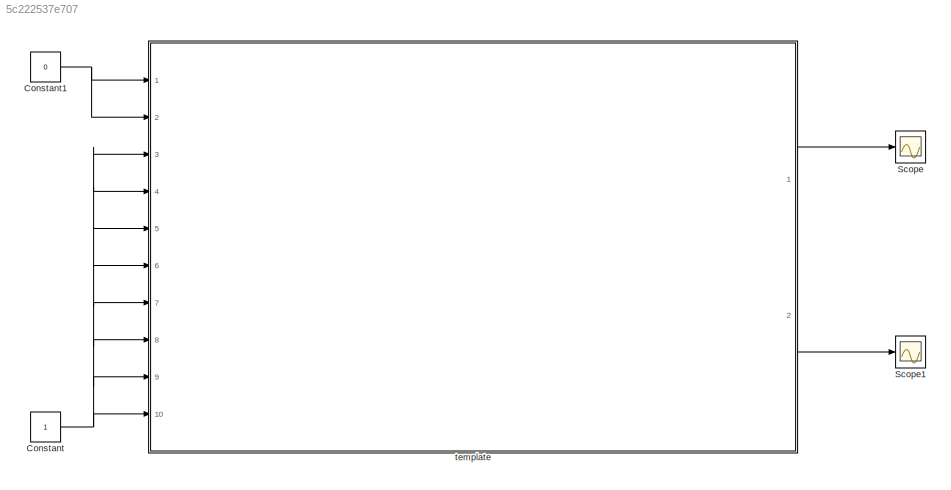
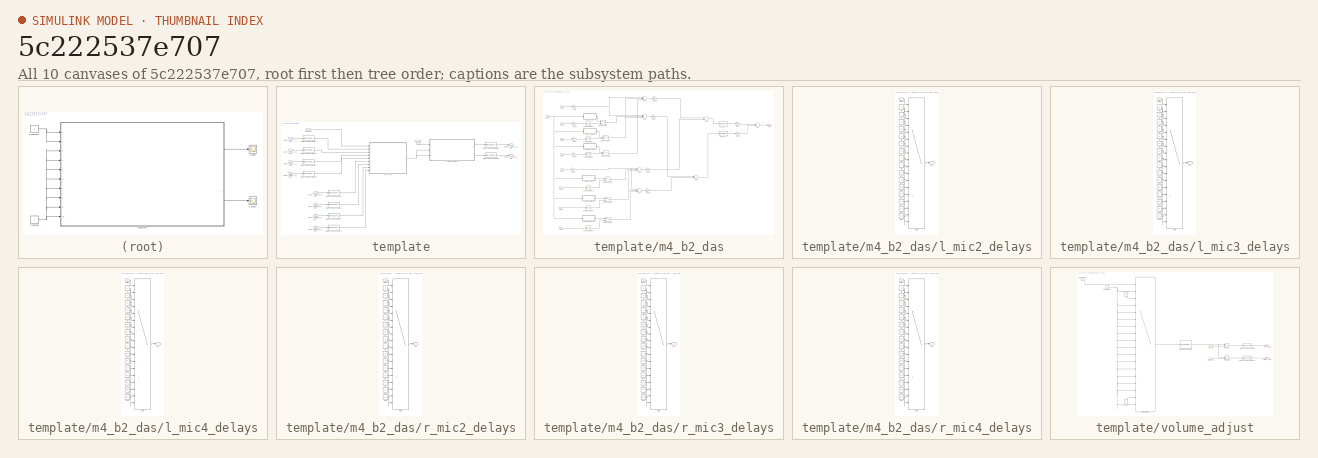
[diagram: thumbnail index - all 10 canvases of the model, root first then tree order]
MODEL slx_5c222537e707
KIND model
CONFIG AbsTol = auto
CONFIG FixedStep = auto
CONFIG MaxStep = auto
CONFIG MinStep = auto
CONFIG RelTol = 1e-3
CONFIG SampleTimeConstraint = Unconstrained
CONFIG Solver = FixedStepAuto
CONFIG SolverMode = SingleTasking
CONFIG SolverName = FixedStepAuto
CONFIG StartTime = 0.0
CONFIG StopTime = 10.0
BLOCK [Constant] Constant
  LockScale = on
  OutDataTypeStr = int32
  SampleTime = -1
BLOCK [Constant] Constant1
  LockScale = on
  OutDataTypeStr = uint32
  SampleTime = -1
  Value = 0
BLOCK [Scope] Scope
  Ports = [1]
  ScopeSpecificationString = Simulink.scopes.TimeScopeBlockCfg('CurrentConfiguration', extmgr.ConfigurationSet(extmgr.Configuration('Core','General UI',true),extmgr.Configuration('Core','Source UI',true),extmgr.Configuration('Sources','WiredSimulink',true,'DataLoggingLimitDataPoints',true,'DataLoggingSaveFormat','Array','DataLoggingDecimation','1','DataLoggingDecimateData',true),extmgr.Configuration('Visuals','Time Domain',tr...<+1477ch>
BLOCK [Scope] Scope1
  Ports = [1]
  ScopeSpecificationString = Simulink.scopes.TimeScopeBlockCfg('CurrentConfiguration', extmgr.ConfigurationSet(extmgr.Configuration('Core','General UI',true),extmgr.Configuration('Core','Source UI',true),extmgr.Configuration('Sources','WiredSimulink',true,'DataLoggingVariableName','ScopeData1','DataLoggingLimitDataPoints',true,'DataLoggingSaveFormat','Array','DataLoggingDecimation','1','DataLoggingDecimateData',true),extmgr.C...<+1508ch>
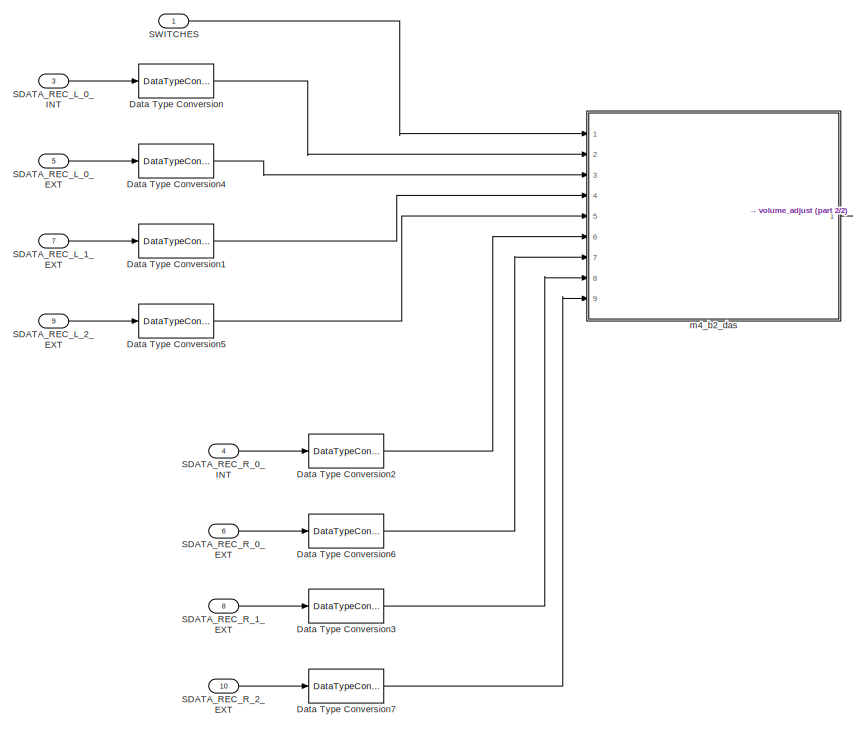
[diagram: template - part 1/2, left side, full height]
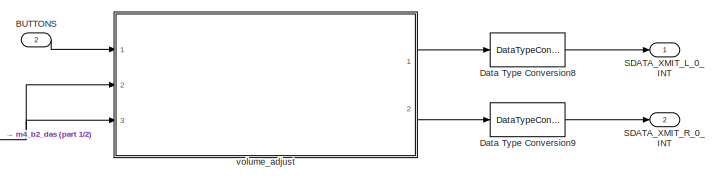
[diagram: template - part 2/2, top right region]
BLOCK [SubSystem] template
  Ports = [10, 2]
  RequestExecContextInheritance = off
  TreatAsAtomicUnit = on
  Variant = off
BLOCK [Inport] template/BUTTONS
  IconDisplay = Port number
  Port = 2
BLOCK [DataTypeConversion] template/Data Type Conversion
  ConvertRealWorld = Stored Integer (SI)
  OutDataTypeStr = fixdt(1,32,31)
  SaturateOnIntegerOverflow = off
BLOCK [DataTypeConversion] template/Data Type Conversion1
  ConvertRealWorld = Stored Integer (SI)
  OutDataTypeStr = fixdt(1,32,31)
  SaturateOnIntegerOverflow = off
BLOCK [DataTypeConversion] template/Data Type Conversion2
  ConvertRealWorld = Stored Integer (SI)
  OutDataTypeStr = fixdt(1,32,31)
  SaturateOnIntegerOverflow = off
BLOCK [DataTypeConversion] template/Data Type Conversion3
  ConvertRealWorld = Stored Integer (SI)
  OutDataTypeStr = fixdt(1,32,31)
  SaturateOnIntegerOverflow = off
BLOCK [DataTypeConversion] template/Data Type Conversion4
  ConvertRealWorld = Stored Integer (SI)
  OutDataTypeStr = fixdt(1,32,31)
  SaturateOnIntegerOverflow = off
BLOCK [DataTypeConversion] template/Data Type Conversion5
  ConvertRealWorld = Stored Integer (SI)
  OutDataTypeStr = fixdt(1,32,31)
  SaturateOnIntegerOverflow = off
BLOCK [DataTypeConversion] template/Data Type Conversion6
  ConvertRealWorld = Stored Integer (SI)
  OutDataTypeStr = fixdt(1,32,31)
  SaturateOnIntegerOverflow = off
BLOCK [DataTypeConversion] template/Data Type Conversion7
  ConvertRealWorld = Stored Integer (SI)
  OutDataTypeStr = fixdt(1,32,31)
  SaturateOnIntegerOverflow = off
BLOCK [DataTypeConversion] template/Data Type Conversion8
  ConvertRealWorld = Stored Integer (SI)
  OutDataTypeStr = int32
BLOCK [DataTypeConversion] template/Data Type Conversion9
  ConvertRealWorld = Stored Integer (SI)
  OutDataTypeStr = int32
BLOCK [Inport] template/SDATA_REC_L_0_EXT
  IconDisplay = Port number
  Port = 5
BLOCK [Inport] template/SDATA_REC_L_0_INT
  IconDisplay = Port number
  Port = 3
BLOCK [Inport] template/SDATA_REC_L_1_EXT
  IconDisplay = Port number
  Port = 7
BLOCK [Inport] template/SDATA_REC_L_2_EXT
  IconDisplay = Port number
  Port = 9
BLOCK [Inport] template/SDATA_REC_R_0_EXT
  IconDisplay = Port number
  Port = 6
BLOCK [Inport] template/SDATA_REC_R_0_INT
  IconDisplay = Port number
  Port = 4
BLOCK [Inport] template/SDATA_REC_R_1_EXT
  IconDisplay = Port number
  Port = 8
BLOCK [Inport] template/SDATA_REC_R_2_EXT
  IconDisplay = Port number
  Port = 10
BLOCK [Outport] template/SDATA_XMIT_L_0_INT
  IconDisplay = Port number
BLOCK [Outport] template/SDATA_XMIT_R_0_INT
  IconDisplay = Port number
  Port = 2
BLOCK [Inport] template/SWITCHES
  IconDisplay = Port number
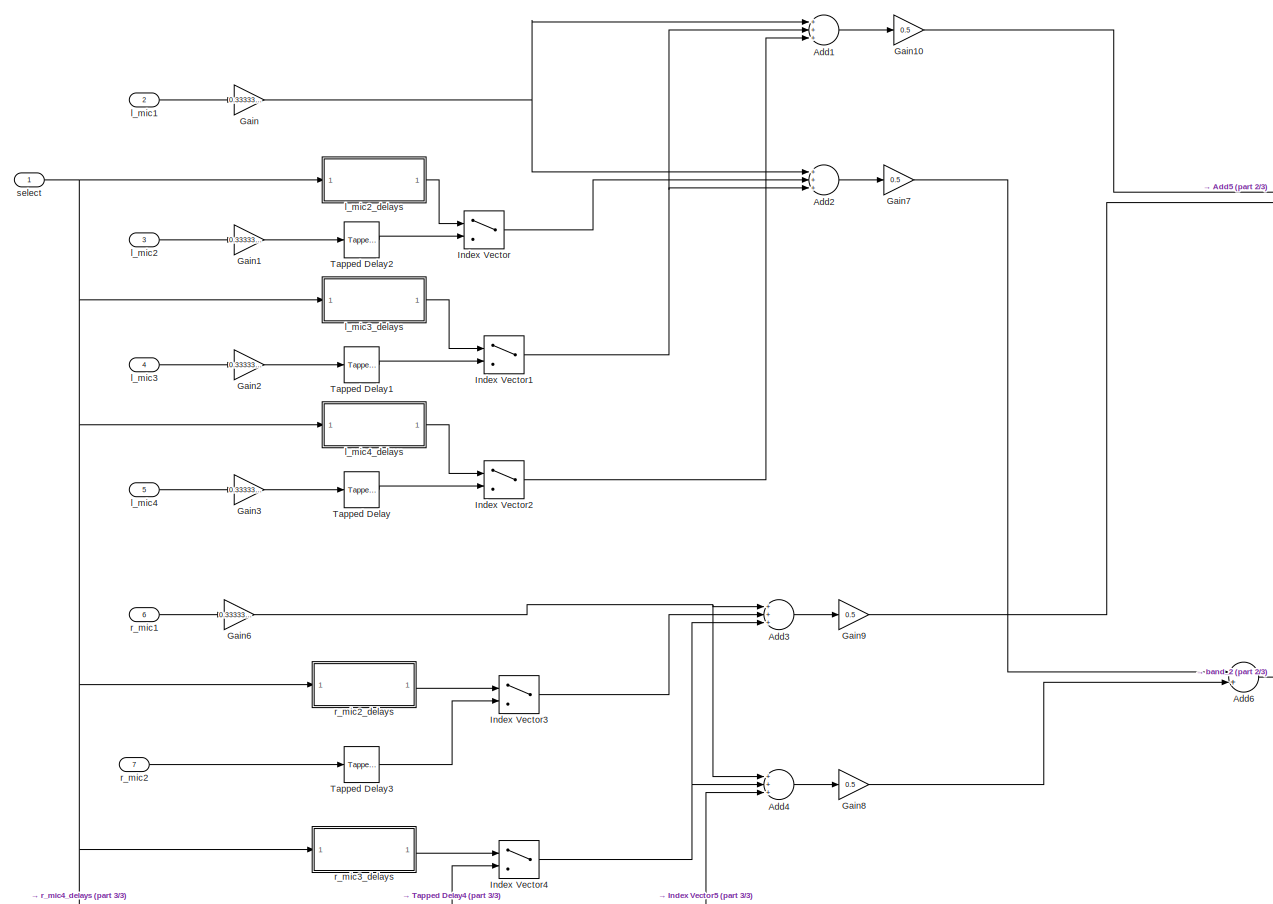
[diagram: template/m4_b2_das - part 1/3, center side, full height]
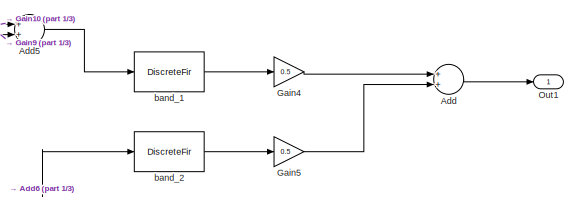
[diagram: template/m4_b2_das - part 2/3, top right region]
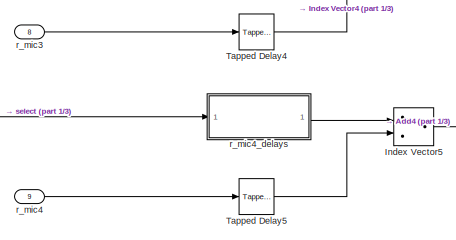
[diagram: template/m4_b2_das - part 3/3, bottom left region]
BLOCK [SubSystem] template/m4_b2_das
  Ports = [9, 1]
  RequestExecContextInheritance = off
  Variant = off
BLOCK [Sum] template/m4_b2_das/Add
  AccumDataTypeStr = Inherit: Same as first input
  InputSameDT = off
  OutDataTypeStr = Inherit: Inherit via back propagation
  Ports = [2, 1]
  RndMeth = Zero
  SaturateOnIntegerOverflow = off
BLOCK [Sum] template/m4_b2_das/Add1
  AccumDataTypeStr = Inherit: Same as first input
  InputSameDT = off
  Inputs = +++
  OutDataTypeStr = Inherit: Inherit via back propagation
  Ports = [3, 1]
  RndMeth = Zero
  SaturateOnIntegerOverflow = off
BLOCK [Sum] template/m4_b2_das/Add2
  AccumDataTypeStr = Inherit: Same as first input
  InputSameDT = off
  Inputs = +++
  OutDataTypeStr = Inherit: Inherit via back propagation
  Ports = [3, 1]
  RndMeth = Zero
  SaturateOnIntegerOverflow = off
BLOCK [Sum] template/m4_b2_das/Add3
  AccumDataTypeStr = Inherit: Same as first input
  InputSameDT = off
  Inputs = +++
  OutDataTypeStr = Inherit: Inherit via back propagation
  Ports = [3, 1]
  RndMeth = Zero
  SaturateOnIntegerOverflow = off
BLOCK [Sum] template/m4_b2_das/Add4
  AccumDataTypeStr = Inherit: Same as first input
  InputSameDT = off
  Inputs = +++
  OutDataTypeStr = Inherit: Inherit via back propagation
  Ports = [3, 1]
  RndMeth = Zero
  SaturateOnIntegerOverflow = off
BLOCK [Sum] template/m4_b2_das/Add5
  AccumDataTypeStr = Inherit: Same as first input
  InputSameDT = off
  OutDataTypeStr = Inherit: Inherit via back propagation
  Ports = [2, 1]
  RndMeth = Zero
  SaturateOnIntegerOverflow = off
BLOCK [Sum] template/m4_b2_das/Add6
  AccumDataTypeStr = Inherit: Same as first input
  InputSameDT = off
  OutDataTypeStr = Inherit: Inherit via back propagation
  Ports = [2, 1]
  RndMeth = Zero
  SaturateOnIntegerOverflow = off
BLOCK [Gain] template/m4_b2_das/Gain
  Gain = 0.333333333333333333333333
  OutDataTypeStr = Inherit: Inherit via back propagation
  ParamDataTypeStr = fixdt(1,32,31)
  RndMeth = Zero
  SaturateOnIntegerOverflow = off
BLOCK [Gain] template/m4_b2_das/Gain1
  Gain = 0.333333333333333333333333
  OutDataTypeStr = Inherit: Inherit via back propagation
  ParamDataTypeStr = fixdt(1,32,31)
  RndMeth = Zero
  SaturateOnIntegerOverflow = off
BLOCK [Gain] template/m4_b2_das/Gain10
  Gain = 0.5
  OutDataTypeStr = Inherit: Inherit via back propagation
  ParamDataTypeStr = fixdt(1,32,31)
  RndMeth = Zero
  SaturateOnIntegerOverflow = off
BLOCK [Gain] template/m4_b2_das/Gain2
  Gain = 0.333333333333333333333333
  OutDataTypeStr = Inherit: Inherit via back propagation
  ParamDataTypeStr = fixdt(1,32,31)
  RndMeth = Zero
  SaturateOnIntegerOverflow = off
BLOCK [Gain] template/m4_b2_das/Gain3
  Gain = 0.333333333333333333333333
  OutDataTypeStr = Inherit: Inherit via back propagation
  ParamDataTypeStr = fixdt(1,32,31)
  RndMeth = Zero
  SaturateOnIntegerOverflow = off
BLOCK [Gain] template/m4_b2_das/Gain4
  Gain = 0.5
  OutDataTypeStr = Inherit: Inherit via back propagation
  ParamDataTypeStr = fixdt(1,32,31)
  RndMeth = Zero
  SaturateOnIntegerOverflow = off
BLOCK [Gain] template/m4_b2_das/Gain5
  Gain = 0.5
  OutDataTypeStr = Inherit: Inherit via back propagation
  ParamDataTypeStr = fixdt(1,32,31)
  RndMeth = Zero
  SaturateOnIntegerOverflow = off
BLOCK [Gain] template/m4_b2_das/Gain6
  Gain = 0.333333333333333333333333
  OutDataTypeStr = Inherit: Inherit via back propagation
  ParamDataTypeStr = fixdt(1,32,31)
  RndMeth = Zero
  SaturateOnIntegerOverflow = off
BLOCK [Gain] template/m4_b2_das/Gain7
  Gain = 0.5
  OutDataTypeStr = Inherit: Inherit via back propagation
  ParamDataTypeStr = fixdt(1,32,31)
  RndMeth = Zero
  SaturateOnIntegerOverflow = off
BLOCK [Gain] template/m4_b2_das/Gain8
  Gain = 0.5
  OutDataTypeStr = Inherit: Inherit via back propagation
  ParamDataTypeStr = fixdt(1,32,31)
  RndMeth = Zero
  SaturateOnIntegerOverflow = off
BLOCK [Gain] template/m4_b2_das/Gain9
  Gain = 0.5
  OutDataTypeStr = Inherit: Inherit via back propagation
  ParamDataTypeStr = fixdt(1,32,31)
  RndMeth = Zero
  SaturateOnIntegerOverflow = off
BLOCK [MultiPortSwitch] template/m4_b2_das/Index Vector
  DataPortOrder = Zero-based contiguous
  InputSameDT = off
  Inputs = 1
  OutDataTypeStr = Inherit: Inherit via back propagation
  Ports = [2, 1]
  RndMeth = Zero
  SaturateOnIntegerOverflow = off
  zeroidx = on
BLOCK [MultiPortSwitch] template/m4_b2_das/Index Vector1
  DataPortOrder = Zero-based contiguous
  InputSameDT = off
  Inputs = 1
  OutDataTypeStr = Inherit: Inherit via back propagation
  Ports = [2, 1]
  RndMeth = Zero
  SaturateOnIntegerOverflow = off
  zeroidx = on
BLOCK [MultiPortSwitch] template/m4_b2_das/Index Vector2
  DataPortOrder = Zero-based contiguous
  InputSameDT = off
  Inputs = 1
  OutDataTypeStr = Inherit: Inherit via back propagation
  Ports = [2, 1]
  RndMeth = Zero
  SaturateOnIntegerOverflow = off
  zeroidx = on
BLOCK [MultiPortSwitch] template/m4_b2_das/Index Vector3
  DataPortOrder = Zero-based contiguous
  InputSameDT = off
  Inputs = 1
  OutDataTypeStr = Inherit: Inherit via back propagation
  Ports = [2, 1]
  RndMeth = Zero
  SaturateOnIntegerOverflow = off
  zeroidx = on
BLOCK [MultiPortSwitch] template/m4_b2_das/Index Vector4
  DataPortOrder = Zero-based contiguous
  InputSameDT = off
  Inputs = 1
  OutDataTypeStr = Inherit: Inherit via back propagation
  Ports = [2, 1]
  RndMeth = Zero
  SaturateOnIntegerOverflow = off
  zeroidx = on
BLOCK [MultiPortSwitch] template/m4_b2_das/Index Vector5
  DataPortOrder = Zero-based contiguous
  InputSameDT = off
  Inputs = 1
  OutDataTypeStr = Inherit: Inherit via back propagation
  Ports = [2, 1]
  RndMeth = Zero
  SaturateOnIntegerOverflow = off
  zeroidx = on
BLOCK [Outport] template/m4_b2_das/Out1
  IconDisplay = Port number
BLOCK [Reference] template/m4_b2_das/Tapped Delay  REF=simulink/Discrete/Tapped Delay
  Ports = [1, 1]
  SourceBlock = simulink/Discrete/Tapped Delay
  SourceType = Tapped Delay Line
BLOCK [Reference] template/m4_b2_das/Tapped Delay1  REF=simulink/Discrete/Tapped Delay
  Ports = [1, 1]
  SourceBlock = simulink/Discrete/Tapped Delay
  SourceType = Tapped Delay Line
BLOCK [Reference] template/m4_b2_das/Tapped Delay2  REF=simulink/Discrete/Tapped Delay
  Ports = [1, 1]
  SourceBlock = simulink/Discrete/Tapped Delay
  SourceType = Tapped Delay Line
BLOCK [Reference] template/m4_b2_das/Tapped Delay3  REF=simulink/Discrete/Tapped Delay
  Ports = [1, 1]
  SourceBlock = simulink/Discrete/Tapped Delay
  SourceType = Tapped Delay Line
BLOCK [Reference] template/m4_b2_das/Tapped Delay4  REF=simulink/Discrete/Tapped Delay
  Ports = [1, 1]
  SourceBlock = simulink/Discrete/Tapped Delay
  SourceType = Tapped Delay Line
BLOCK [Reference] template/m4_b2_das/Tapped Delay5  REF=simulink/Discrete/Tapped Delay
  Ports = [1, 1]
  SourceBlock = simulink/Discrete/Tapped Delay
  SourceType = Tapped Delay Line
BLOCK [DiscreteFir] template/m4_b2_das/band_1
  AccumDataTypeStr = fixdt(true,32,31)
  CoefDataTypeStr = fixdt(true,32,31)
  Coefficients = [-0.00053705791338513377 -0.00044855299737557808 -0.00036099922930643786 -0.00027182738607320795 -0.0001800106196580879 -8.7417645431150305e-05 4.5317422206240127e-19 7.1331751728587471e-05 0.00011027156665220004 9.5221825736704465e-05 0 -0.00020483530962554712 -0.00055007263840206664 -0.0010654350907672839 -0.0017768000544541641 -0.0027032258660805272 -0.0038539915115078267 -0.0052258738517944421...<+1638ch>
  FilterStructure = Direct form transposed
  InputPortMap = u0
  OutDataTypeStr = fixdt(true,32,31)
  OutputPortMap = o0
  Ports = [1, 1]
  ProductDataTypeStr = fixdt(true,32,31)
  RndMeth = Zero
  StateDataTypeStr = fixdt(true,32,31)
BLOCK [DiscreteFir] template/m4_b2_das/band_2
  AccumDataTypeStr = fixdt(true,32,31)
  CoefDataTypeStr = fixdt(true,32,31)
  Coefficients = [-0.00036313593382457956 -0.00057160558763808358 -0.00065269431705686481 -0.00059959800144019899 -0.00043096011414818828 -0.00020049863435509264 1.1229633857001479e-18 5.2388084292541928e-05 -0.00015767536744401418 -0.00069626860967264841 -0.0015353272375055386 -0.002523852547128952 -0.003394038353231411 -0.0038118140524449097 -0.0034668479487325946 -0.0021807585504879444 2.9770583721313723e-18 0....<+1674ch>
  FilterStructure = Direct form transposed
  InputPortMap = u0
  OutDataTypeStr = fixdt(true,32,31)
  OutputPortMap = o0
  Ports = [1, 1]
  ProductDataTypeStr = fixdt(true,32,31)
  RndMeth = Zero
  StateDataTypeStr = fixdt(true,32,31)
BLOCK [Inport] template/m4_b2_das/l_mic1
  IconDisplay = Port number
  Port = 2
BLOCK [Inport] template/m4_b2_das/l_mic2
  IconDisplay = Port number
  Port = 3
BLOCK [SubSystem] template/m4_b2_das/l_mic2_delays
  Ports = [1, 1]
  RequestExecContextInheritance = off
  Variant = off
BLOCK [Constant] template/m4_b2_das/l_mic2_delays/d1
  OutDataTypeStr = uint16
  SampleTime = -1
  Value = 0
BLOCK [Constant] template/m4_b2_das/l_mic2_delays/d10
  OutDataTypeStr = uint16
  SampleTime = -1
  Value = 8
BLOCK [Constant] template/m4_b2_das/l_mic2_delays/d11
  OutDataTypeStr = uint16
  SampleTime = -1
  Value = 9
BLOCK [Constant] template/m4_b2_das/l_mic2_delays/d12
  OutDataTypeStr = uint16
  SampleTime = -1
  Value = 10
BLOCK [Constant] template/m4_b2_das/l_mic2_delays/d13
  OutDataTypeStr = uint16
  SampleTime = -1
  Value = 10
BLOCK [Constant] template/m4_b2_das/l_mic2_delays/d14
  OutDataTypeStr = uint16
  SampleTime = -1
  Value = 11
BLOCK [Constant] template/m4_b2_das/l_mic2_delays/d15
  OutDataTypeStr = uint16
  SampleTime = -1
  Value = 12
BLOCK [Constant] template/m4_b2_das/l_mic2_delays/d16
  OutDataTypeStr = uint16
  SampleTime = -1
  Value = 12
BLOCK [Constant] template/m4_b2_das/l_mic2_delays/d2
  OutDataTypeStr = uint16
  SampleTime = -1
BLOCK [Constant] template/m4_b2_das/l_mic2_delays/d3
  OutDataTypeStr = uint16
  SampleTime = -1
  Value = 2
BLOCK [Constant] template/m4_b2_das/l_mic2_delays/d4
  OutDataTypeStr = uint16
  SampleTime = -1
  Value = 3
BLOCK [Constant] template/m4_b2_das/l_mic2_delays/d5
  OutDataTypeStr = uint16
  SampleTime = -1
  Value = 4
BLOCK [Constant] template/m4_b2_das/l_mic2_delays/d6
  OutDataTypeStr = uint16
  SampleTime = -1
  Value = 5
BLOCK [Constant] template/m4_b2_das/l_mic2_delays/d7
  OutDataTypeStr = uint16
  SampleTime = -1
  Value = 5
BLOCK [Constant] template/m4_b2_das/l_mic2_delays/d8
  OutDataTypeStr = uint16
  SampleTime = -1
  Value = 6
BLOCK [Constant] template/m4_b2_das/l_mic2_delays/d9
  OutDataTypeStr = uint16
  SampleTime = -1
  Value = 7
BLOCK [MultiPortSwitch] template/m4_b2_das/l_mic2_delays/mps
  DataPortForDefault = Additional data port
  DataPortOrder = Zero-based contiguous
  DiagnosticForDefault = None
  Inputs = 16
  OutDataTypeStr = Inherit: Inherit via back propagation
  Ports = [18, 1]
  RndMeth = Zero
  SaturateOnIntegerOverflow = off
BLOCK [Outport] template/m4_b2_das/l_mic2_delays/out
  IconDisplay = Port number
BLOCK [Inport] template/m4_b2_das/l_mic2_delays/select
  IconDisplay = Port number
BLOCK [Inport] template/m4_b2_das/l_mic3
  IconDisplay = Port number
  Port = 4
BLOCK [SubSystem] template/m4_b2_das/l_mic3_delays
  Ports = [1, 1]
  RequestExecContextInheritance = off
  Variant = off
BLOCK [Constant] template/m4_b2_das/l_mic3_delays/d1
  OutDataTypeStr = uint16
  SampleTime = -1
  Value = 0
BLOCK [Constant] template/m4_b2_das/l_mic3_delays/d10
  OutDataTypeStr = uint16
  SampleTime = -1
  Value = 17
BLOCK [Constant] template/m4_b2_das/l_mic3_delays/d11
  OutDataTypeStr = uint16
  SampleTime = -1
  Value = 18
BLOCK [Constant] template/m4_b2_das/l_mic3_delays/d12
  OutDataTypeStr = uint16
  SampleTime = -1
  Value = 20
BLOCK [Constant] template/m4_b2_das/l_mic3_delays/d13
  OutDataTypeStr = uint16
  SampleTime = -1
  Value = 21
BLOCK [Constant] template/m4_b2_das/l_mic3_delays/d14
  OutDataTypeStr = uint16
  SampleTime = -1
  Value = 22
BLOCK [Constant] template/m4_b2_das/l_mic3_delays/d15
  OutDataTypeStr = uint16
  SampleTime = -1
  Value = 24
BLOCK [Constant] template/m4_b2_das/l_mic3_delays/d16
  OutDataTypeStr = uint16
  SampleTime = -1
  Value = 25
BLOCK [Constant] template/m4_b2_das/l_mic3_delays/d2
  OutDataTypeStr = uint16
  SampleTime = -1
  Value = 2
BLOCK [Constant] template/m4_b2_das/l_mic3_delays/d3
  OutDataTypeStr = uint16
  SampleTime = -1
  Value = 4
BLOCK [Constant] template/m4_b2_das/l_mic3_delays/d4
  OutDataTypeStr = uint16
  SampleTime = -1
  Value = 6
BLOCK [Constant] template/m4_b2_das/l_mic3_delays/d5
  OutDataTypeStr = uint16
  SampleTime = -1
  Value = 8
BLOCK [Constant] template/m4_b2_das/l_mic3_delays/d6
  OutDataTypeStr = uint16
  SampleTime = -1
  Value = 10
BLOCK [Constant] template/m4_b2_das/l_mic3_delays/d7
  OutDataTypeStr = uint16
  SampleTime = -1
  Value = 11
BLOCK [Constant] template/m4_b2_das/l_mic3_delays/d8
  OutDataTypeStr = uint16
  SampleTime = -1
  Value = 13
BLOCK [Constant] template/m4_b2_das/l_mic3_delays/d9
  OutDataTypeStr = uint16
  SampleTime = -1
  Value = 15
BLOCK [MultiPortSwitch] template/m4_b2_das/l_mic3_delays/mps
  DataPortForDefault = Additional data port
  DataPortOrder = Zero-based contiguous
  DiagnosticForDefault = None
  Inputs = 16
  OutDataTypeStr = Inherit: Inherit via back propagation
  Ports = [18, 1]
  RndMeth = Zero
  SaturateOnIntegerOverflow = off
BLOCK [Outport] template/m4_b2_das/l_mic3_delays/out
  IconDisplay = Port number
BLOCK [Inport] template/m4_b2_das/l_mic3_delays/select
  IconDisplay = Port number
BLOCK [Inport] template/m4_b2_das/l_mic4
  IconDisplay = Port number
  Port = 5
BLOCK [SubSystem] template/m4_b2_das/l_mic4_delays
  Ports = [1, 1]
  RequestExecContextInheritance = off
  Variant = off
BLOCK [Constant] template/m4_b2_das/l_mic4_delays/d1
  OutDataTypeStr = uint16
  SampleTime = -1
  Value = 0
BLOCK [Constant] template/m4_b2_das/l_mic4_delays/d10
  OutDataTypeStr = uint16
  SampleTime = -1
  Value = 34
BLOCK [Constant] template/m4_b2_das/l_mic4_delays/d11
  OutDataTypeStr = uint16
  SampleTime = -1
  Value = 37
BLOCK [Constant] template/m4_b2_das/l_mic4_delays/d12
  OutDataTypeStr = uint16
  SampleTime = -1
  Value = 40
BLOCK [Constant] template/m4_b2_das/l_mic4_delays/d13
  OutDataTypeStr = uint16
  SampleTime = -1
  Value = 43
BLOCK [Constant] template/m4_b2_das/l_mic4_delays/d14
  OutDataTypeStr = uint16
  SampleTime = -1
  Value = 45
BLOCK [Constant] template/m4_b2_das/l_mic4_delays/d15
  OutDataTypeStr = uint16
  SampleTime = -1
  Value = 48
BLOCK [Constant] template/m4_b2_das/l_mic4_delays/d16
  OutDataTypeStr = uint16
  SampleTime = -1
  Value = 50
BLOCK [Constant] template/m4_b2_das/l_mic4_delays/d2
  OutDataTypeStr = uint16
  SampleTime = -1
  Value = 4
BLOCK [Constant] template/m4_b2_das/l_mic4_delays/d3
  OutDataTypeStr = uint16
  SampleTime = -1
  Value = 8
BLOCK [Constant] template/m4_b2_das/l_mic4_delays/d4
  OutDataTypeStr = uint16
  SampleTime = -1
  Value = 12
BLOCK [Constant] template/m4_b2_das/l_mic4_delays/d5
  OutDataTypeStr = uint16
  SampleTime = -1
  Value = 16
BLOCK [Constant] template/m4_b2_das/l_mic4_delays/d6
  OutDataTypeStr = uint16
  SampleTime = -1
  Value = 20
BLOCK [Constant] template/m4_b2_das/l_mic4_delays/d7
  OutDataTypeStr = uint16
  SampleTime = -1
  Value = 23
BLOCK [Constant] template/m4_b2_das/l_mic4_delays/d8
  OutDataTypeStr = uint16
  SampleTime = -1
  Value = 27
BLOCK [Constant] template/m4_b2_das/l_mic4_delays/d9
  OutDataTypeStr = uint16
  SampleTime = -1
  Value = 31
BLOCK [MultiPortSwitch] template/m4_b2_das/l_mic4_delays/mps
  DataPortForDefault = Additional data port
  DataPortOrder = Zero-based contiguous
  DiagnosticForDefault = None
  Inputs = 16
  OutDataTypeStr = Inherit: Inherit via back propagation
  Ports = [18, 1]
  RndMeth = Zero
  SaturateOnIntegerOverflow = off
BLOCK [Outport] template/m4_b2_das/l_mic4_delays/out
  IconDisplay = Port number
BLOCK [Inport] template/m4_b2_das/l_mic4_delays/select
  IconDisplay = Port number
BLOCK [Inport] template/m4_b2_das/r_mic1
  IconDisplay = Port number
  Port = 6
BLOCK [Inport] template/m4_b2_das/r_mic2
  IconDisplay = Port number
  Port = 7
BLOCK [SubSystem] template/m4_b2_das/r_mic2_delays
  Ports = [1, 1]
  RequestExecContextInheritance = off
  Variant = off
BLOCK [Constant] template/m4_b2_das/r_mic2_delays/d1
  OutDataTypeStr = uint16
  SampleTime = -1
  Value = 0
BLOCK [Constant] template/m4_b2_das/r_mic2_delays/d10
  OutDataTypeStr = uint16
  SampleTime = -1
  Value = 8
BLOCK [Constant] template/m4_b2_das/r_mic2_delays/d11
  OutDataTypeStr = uint16
  SampleTime = -1
  Value = 9
BLOCK [Constant] template/m4_b2_das/r_mic2_delays/d12
  OutDataTypeStr = uint16
  SampleTime = -1
  Value = 10
BLOCK [Constant] template/m4_b2_das/r_mic2_delays/d13
  OutDataTypeStr = uint16
  SampleTime = -1
  Value = 10
BLOCK [Constant] template/m4_b2_das/r_mic2_delays/d14
  OutDataTypeStr = uint16
  SampleTime = -1
  Value = 11
BLOCK [Constant] template/m4_b2_das/r_mic2_delays/d15
  OutDataTypeStr = uint16
  SampleTime = -1
  Value = 12
BLOCK [Constant] template/m4_b2_das/r_mic2_delays/d16
  OutDataTypeStr = uint16
  SampleTime = -1
  Value = 12
BLOCK [Constant] template/m4_b2_das/r_mic2_delays/d2
  OutDataTypeStr = uint16
  SampleTime = -1
BLOCK [Constant] template/m4_b2_das/r_mic2_delays/d3
  OutDataTypeStr = uint16
  SampleTime = -1
  Value = 2
BLOCK [Constant] template/m4_b2_das/r_mic2_delays/d4
  OutDataTypeStr = uint16
  SampleTime = -1
  Value = 3
BLOCK [Constant] template/m4_b2_das/r_mic2_delays/d5
  OutDataTypeStr = uint16
  SampleTime = -1
  Value = 4
BLOCK [Constant] template/m4_b2_das/r_mic2_delays/d6
  OutDataTypeStr = uint16
  SampleTime = -1
  Value = 5
BLOCK [Constant] template/m4_b2_das/r_mic2_delays/d7
  OutDataTypeStr = uint16
  SampleTime = -1
  Value = 5
BLOCK [Constant] template/m4_b2_das/r_mic2_delays/d8
  OutDataTypeStr = uint16
  SampleTime = -1
  Value = 6
BLOCK [Constant] template/m4_b2_das/r_mic2_delays/d9
  OutDataTypeStr = uint16
  SampleTime = -1
  Value = 7
BLOCK [MultiPortSwitch] template/m4_b2_das/r_mic2_delays/mps
  DataPortForDefault = Additional data port
  DataPortOrder = Zero-based contiguous
  DiagnosticForDefault = None
  Inputs = 16
  OutDataTypeStr = Inherit: Inherit via back propagation
  Ports = [18, 1]
  RndMeth = Zero
  SaturateOnIntegerOverflow = off
BLOCK [Outport] template/m4_b2_das/r_mic2_delays/out
  IconDisplay = Port number
BLOCK [Inport] template/m4_b2_das/r_mic2_delays/select
  IconDisplay = Port number
BLOCK [Inport] template/m4_b2_das/r_mic3
  IconDisplay = Port number
  Port = 8
BLOCK [SubSystem] template/m4_b2_das/r_mic3_delays
  Ports = [1, 1]
  RequestExecContextInheritance = off
  Variant = off
BLOCK [Constant] template/m4_b2_das/r_mic3_delays/d1
  OutDataTypeStr = uint16
  SampleTime = -1
  Value = 0
BLOCK [Constant] template/m4_b2_das/r_mic3_delays/d10
  OutDataTypeStr = uint16
  SampleTime = -1
  Value = 17
BLOCK [Constant] template/m4_b2_das/r_mic3_delays/d11
  OutDataTypeStr = uint16
  SampleTime = -1
  Value = 18
BLOCK [Constant] template/m4_b2_das/r_mic3_delays/d12
  OutDataTypeStr = uint16
  SampleTime = -1
  Value = 20
BLOCK [Constant] template/m4_b2_das/r_mic3_delays/d13
  OutDataTypeStr = uint16
  SampleTime = -1
  Value = 21
BLOCK [Constant] template/m4_b2_das/r_mic3_delays/d14
  OutDataTypeStr = uint16
  SampleTime = -1
  Value = 22
BLOCK [Constant] template/m4_b2_das/r_mic3_delays/d15
  OutDataTypeStr = uint16
  SampleTime = -1
  Value = 24
BLOCK [Constant] template/m4_b2_das/r_mic3_delays/d16
  OutDataTypeStr = uint16
  SampleTime = -1
  Value = 25
BLOCK [Constant] template/m4_b2_das/r_mic3_delays/d2
  OutDataTypeStr = uint16
  SampleTime = -1
  Value = 2
BLOCK [Constant] template/m4_b2_das/r_mic3_delays/d3
  OutDataTypeStr = uint16
  SampleTime = -1
  Value = 4
BLOCK [Constant] template/m4_b2_das/r_mic3_delays/d4
  OutDataTypeStr = uint16
  SampleTime = -1
  Value = 6
BLOCK [Constant] template/m4_b2_das/r_mic3_delays/d5
  OutDataTypeStr = uint16
  SampleTime = -1
  Value = 8
BLOCK [Constant] template/m4_b2_das/r_mic3_delays/d6
  OutDataTypeStr = uint16
  SampleTime = -1
  Value = 10
BLOCK [Constant] template/m4_b2_das/r_mic3_delays/d7
  OutDataTypeStr = uint16
  SampleTime = -1
  Value = 11
BLOCK [Constant] template/m4_b2_das/r_mic3_delays/d8
  OutDataTypeStr = uint16
  SampleTime = -1
  Value = 13
BLOCK [Constant] template/m4_b2_das/r_mic3_delays/d9
  OutDataTypeStr = uint16
  SampleTime = -1
  Value = 15
BLOCK [MultiPortSwitch] template/m4_b2_das/r_mic3_delays/mps
  DataPortForDefault = Additional data port
  DataPortOrder = Zero-based contiguous
  DiagnosticForDefault = None
  Inputs = 16
  OutDataTypeStr = Inherit: Inherit via back propagation
  Ports = [18, 1]
  RndMeth = Zero
  SaturateOnIntegerOverflow = off
BLOCK [Outport] template/m4_b2_das/r_mic3_delays/out
  IconDisplay = Port number
BLOCK [Inport] template/m4_b2_das/r_mic3_delays/select
  IconDisplay = Port number
BLOCK [Inport] template/m4_b2_das/r_mic4
  IconDisplay = Port number
  Port = 9
BLOCK [SubSystem] template/m4_b2_das/r_mic4_delays
  Ports = [1, 1]
  RequestExecContextInheritance = off
  Variant = off
BLOCK [Constant] template/m4_b2_das/r_mic4_delays/d1
  OutDataTypeStr = uint16
  SampleTime = -1
  Value = 0
BLOCK [Constant] template/m4_b2_das/r_mic4_delays/d10
  OutDataTypeStr = uint16
  SampleTime = -1
  Value = 34
BLOCK [Constant] template/m4_b2_das/r_mic4_delays/d11
  OutDataTypeStr = uint16
  SampleTime = -1
  Value = 37
BLOCK [Constant] template/m4_b2_das/r_mic4_delays/d12
  OutDataTypeStr = uint16
  SampleTime = -1
  Value = 40
BLOCK [Constant] template/m4_b2_das/r_mic4_delays/d13
  OutDataTypeStr = uint16
  SampleTime = -1
  Value = 43
BLOCK [Constant] template/m4_b2_das/r_mic4_delays/d14
  OutDataTypeStr = uint16
  SampleTime = -1
  Value = 45
BLOCK [Constant] template/m4_b2_das/r_mic4_delays/d15
  OutDataTypeStr = uint16
  SampleTime = -1
  Value = 48
BLOCK [Constant] template/m4_b2_das/r_mic4_delays/d16
  OutDataTypeStr = uint16
  SampleTime = -1
  Value = 50
BLOCK [Constant] template/m4_b2_das/r_mic4_delays/d2
  OutDataTypeStr = uint16
  SampleTime = -1
  Value = 4
BLOCK [Constant] template/m4_b2_das/r_mic4_delays/d3
  OutDataTypeStr = uint16
  SampleTime = -1
  Value = 8
BLOCK [Constant] template/m4_b2_das/r_mic4_delays/d4
  OutDataTypeStr = uint16
  SampleTime = -1
  Value = 12
BLOCK [Constant] template/m4_b2_das/r_mic4_delays/d5
  OutDataTypeStr = uint16
  SampleTime = -1
  Value = 16
BLOCK [Constant] template/m4_b2_das/r_mic4_delays/d6
  OutDataTypeStr = uint16
  SampleTime = -1
  Value = 20
BLOCK [Constant] template/m4_b2_das/r_mic4_delays/d7
  OutDataTypeStr = uint16
  SampleTime = -1
  Value = 23
BLOCK [Constant] template/m4_b2_das/r_mic4_delays/d8
  OutDataTypeStr = uint16
  SampleTime = -1
  Value = 27
BLOCK [Constant] template/m4_b2_das/r_mic4_delays/d9
  OutDataTypeStr = uint16
  SampleTime = -1
  Value = 31
BLOCK [MultiPortSwitch] template/m4_b2_das/r_mic4_delays/mps
  DataPortForDefault = Additional data port
  DataPortOrder = Zero-based contiguous
  DiagnosticForDefault = None
  Inputs = 16
  OutDataTypeStr = Inherit: Inherit via back propagation
  Ports = [18, 1]
  RndMeth = Zero
  SaturateOnIntegerOverflow = off
BLOCK [Outport] template/m4_b2_das/r_mic4_delays/out
  IconDisplay = Port number
BLOCK [Inport] template/m4_b2_das/r_mic4_delays/select
  IconDisplay = Port number
BLOCK [Inport] template/m4_b2_das/select
  IconDisplay = Port number
BLOCK [SubSystem] template/volume_adjust
  Ports = [3, 2]
  RequestExecContextInheritance = off
  Variant = off
BLOCK [Inport] template/volume_adjust/BUTTONS
  IconDisplay = Port number
BLOCK [Constant] template/volume_adjust/Constant
  OutDataTypeStr = fixdt(1,64,31)
  SampleTime = -1
BLOCK [Constant] template/volume_adjust/Constant1
  OutDataTypeStr = fixdt(1,64,31)
  SampleTime = -1
  Value = -1
BLOCK [Constant] template/volume_adjust/Constant2
  OutDataTypeStr = fixdt(1,64,31)
  SampleTime = -1
  Value = 0
BLOCK [DataTypeConversion] template/volume_adjust/Data Type Conversion
  OutDataTypeStr = fixdt(1,32,31)
  SaturateOnIntegerOverflow = off
BLOCK [DataTypeConversion] template/volume_adjust/Data Type Conversion1
  OutDataTypeStr = fixdt(1,32,31)
  SaturateOnIntegerOverflow = off
BLOCK [DiscreteIntegrator] template/volume_adjust/Discrete-Time Integrator
  ICPrevOutput = DiscIntNeverNeededParam
  ICPrevScaledInput = DiscIntNeverNeededParam
  InitialCondition = 1
  LimitOutput = on
  LowerSaturationLimit = 0
  OutDataTypeStr = fixdt(1,64,31)
  Ports = [1, 1]
  RndMeth = Zero
  SaturateOnIntegerOverflow = on
  UpperSaturationLimit = 10000
  gainval = 0.00005
BLOCK [Inport] template/volume_adjust/LEFT_IN
  IconDisplay = Port number
  Port = 2
BLOCK [Outport] template/volume_adjust/LEFT_OUT
  IconDisplay = Port number
BLOCK [MultiPortSwitch] template/volume_adjust/Multiport Switch
  DataPortForDefault = Additional data port
  DataPortIndices = {16,2}
  DiagnosticForDefault = None
  InputSameDT = off
  Inputs = 16
  OutDataTypeStr = Inherit: Inherit via back propagation
  Ports = [18, 1]
  RndMeth = Zero
  SaturateOnIntegerOverflow = off
BLOCK [Product] template/volume_adjust/Product
  InputSameDT = off
  OutDataTypeStr = Inherit: Inherit via back propagation
  Ports = [2, 1]
  SaturateOnIntegerOverflow = off
BLOCK [Product] template/volume_adjust/Product1
  InputSameDT = off
  OutDataTypeStr = Inherit: Inherit via back propagation
  Ports = [2, 1]
  SaturateOnIntegerOverflow = off
BLOCK [Inport] template/volume_adjust/RIGHT_IN
  IconDisplay = Port number
  Port = 3
BLOCK [Outport] template/volume_adjust/RIGHT_OUT
  IconDisplay = Port number
  Port = 2
NET Constant1:1 -> template:1, template:2
NET Constant:1 -> template:10, template:3, template:4, template:5, template:6, template:7, template:8, template:9
LINE template/BUTTONS:1 -> template/volume_adjust:1
LINE template/Data Type Conversion1:1 -> template/m4_b2_das:4
LINE template/Data Type Conversion2:1 -> template/m4_b2_das:6
LINE template/Data Type Conversion3:1 -> template/m4_b2_das:8
LINE template/Data Type Conversion4:1 -> template/m4_b2_das:3
LINE template/Data Type Conversion5:1 -> template/m4_b2_das:5
LINE template/Data Type Conversion6:1 -> template/m4_b2_das:7
LINE template/Data Type Conversion7:1 -> template/m4_b2_das:9
LINE template/Data Type Conversion8:1 -> template/SDATA_XMIT_L_0_INT:1
LINE template/Data Type Conversion9:1 -> template/SDATA_XMIT_R_0_INT:1
LINE template/Data Type Conversion:1 -> template/m4_b2_das:2
LINE template/SDATA_REC_L_0_EXT:1 -> template/Data Type Conversion4:1
LINE template/SDATA_REC_L_0_INT:1 -> template/Data Type Conversion:1
LINE template/SDATA_REC_L_1_EXT:1 -> template/Data Type Conversion1:1
LINE template/SDATA_REC_L_2_EXT:1 -> template/Data Type Conversion5:1
LINE template/SDATA_REC_R_0_EXT:1 -> template/Data Type Conversion6:1
LINE template/SDATA_REC_R_0_INT:1 -> template/Data Type Conversion2:1
LINE template/SDATA_REC_R_1_EXT:1 -> template/Data Type Conversion3:1
LINE template/SDATA_REC_R_2_EXT:1 -> template/Data Type Conversion7:1
LINE template/SWITCHES:1 -> template/m4_b2_das:1
LINE template/m4_b2_das/Add1:1 -> template/m4_b2_das/Gain10:1
LINE template/m4_b2_das/Add2:1 -> template/m4_b2_das/Gain7:1
LINE template/m4_b2_das/Add3:1 -> template/m4_b2_das/Gain9:1
LINE template/m4_b2_das/Add4:1 -> template/m4_b2_das/Gain8:1
LINE template/m4_b2_das/Add5:1 -> template/m4_b2_das/band_1:1
LINE template/m4_b2_das/Add6:1 -> template/m4_b2_das/band_2:1
LINE template/m4_b2_das/Add:1 -> template/m4_b2_das/Out1:1
LINE template/m4_b2_das/Gain10:1 -> template/m4_b2_das/Add5:1
LINE template/m4_b2_das/Gain1:1 -> template/m4_b2_das/Tapped Delay2:1
LINE template/m4_b2_das/Gain2:1 -> template/m4_b2_das/Tapped Delay1:1
LINE template/m4_b2_das/Gain3:1 -> template/m4_b2_das/Tapped Delay:1
LINE template/m4_b2_das/Gain4:1 -> template/m4_b2_das/Add:1
LINE template/m4_b2_das/Gain5:1 -> template/m4_b2_das/Add:2
NET template/m4_b2_das/Gain6:1 -> template/m4_b2_das/Add3:1, template/m4_b2_das/Add4:1
LINE template/m4_b2_das/Gain7:1 -> template/m4_b2_das/Add6:1
LINE template/m4_b2_das/Gain8:1 -> template/m4_b2_das/Add6:2
LINE template/m4_b2_das/Gain9:1 -> template/m4_b2_das/Add5:2
NET template/m4_b2_das/Gain:1 -> template/m4_b2_das/Add1:1, template/m4_b2_das/Add2:1
NET template/m4_b2_das/Index Vector1:1 -> template/m4_b2_das/Add1:2, template/m4_b2_das/Add2:3
LINE template/m4_b2_das/Index Vector2:1 -> template/m4_b2_das/Add1:3
LINE template/m4_b2_das/Index Vector3:1 -> template/m4_b2_das/Add3:2
NET template/m4_b2_das/Index Vector4:1 -> template/m4_b2_das/Add3:3, template/m4_b2_das/Add4:2
LINE template/m4_b2_das/Index Vector5:1 -> template/m4_b2_das/Add4:3
LINE template/m4_b2_das/Index Vector:1 -> template/m4_b2_das/Add2:2
LINE template/m4_b2_das/Tapped Delay1:1 -> template/m4_b2_das/Index Vector1:2
LINE template/m4_b2_das/Tapped Delay2:1 -> template/m4_b2_das/Index Vector:2
LINE template/m4_b2_das/Tapped Delay3:1 -> template/m4_b2_das/Index Vector3:2
LINE template/m4_b2_das/Tapped Delay4:1 -> template/m4_b2_das/Index Vector4:2
LINE template/m4_b2_das/Tapped Delay5:1 -> template/m4_b2_das/Index Vector5:2
LINE template/m4_b2_das/Tapped Delay:1 -> template/m4_b2_das/Index Vector2:2
LINE template/m4_b2_das/band_1:1 -> template/m4_b2_das/Gain4:1
LINE template/m4_b2_das/band_2:1 -> template/m4_b2_das/Gain5:1
LINE template/m4_b2_das/l_mic1:1 -> template/m4_b2_das/Gain:1
LINE template/m4_b2_das/l_mic2:1 -> template/m4_b2_das/Gain1:1
LINE template/m4_b2_das/l_mic2_delays/d10:1 -> template/m4_b2_das/l_mic2_delays/mps:11
LINE template/m4_b2_das/l_mic2_delays/d11:1 -> template/m4_b2_das/l_mic2_delays/mps:12
LINE template/m4_b2_das/l_mic2_delays/d12:1 -> template/m4_b2_das/l_mic2_delays/mps:13
LINE template/m4_b2_das/l_mic2_delays/d13:1 -> template/m4_b2_das/l_mic2_delays/mps:14
LINE template/m4_b2_das/l_mic2_delays/d14:1 -> template/m4_b2_das/l_mic2_delays/mps:15
LINE template/m4_b2_das/l_mic2_delays/d15:1 -> template/m4_b2_das/l_mic2_delays/mps:16
LINE template/m4_b2_das/l_mic2_delays/d16:1 -> template/m4_b2_das/l_mic2_delays/mps:17
NET template/m4_b2_das/l_mic2_delays/d1:1 -> template/m4_b2_das/l_mic2_delays/mps:18, template/m4_b2_das/l_mic2_delays/mps:2
LINE template/m4_b2_das/l_mic2_delays/d2:1 -> template/m4_b2_das/l_mic2_delays/mps:3
LINE template/m4_b2_das/l_mic2_delays/d3:1 -> template/m4_b2_das/l_mic2_delays/mps:4
LINE template/m4_b2_das/l_mic2_delays/d4:1 -> template/m4_b2_das/l_mic2_delays/mps:5
LINE template/m4_b2_das/l_mic2_delays/d5:1 -> template/m4_b2_das/l_mic2_delays/mps:6
LINE template/m4_b2_das/l_mic2_delays/d6:1 -> template/m4_b2_das/l_mic2_delays/mps:7
LINE template/m4_b2_das/l_mic2_delays/d7:1 -> template/m4_b2_das/l_mic2_delays/mps:8
LINE template/m4_b2_das/l_mic2_delays/d8:1 -> template/m4_b2_das/l_mic2_delays/mps:9
LINE template/m4_b2_das/l_mic2_delays/d9:1 -> template/m4_b2_das/l_mic2_delays/mps:10
LINE template/m4_b2_das/l_mic2_delays/mps:1 -> template/m4_b2_das/l_mic2_delays/out:1
LINE template/m4_b2_das/l_mic2_delays/select:1 -> template/m4_b2_das/l_mic2_delays/mps:1
LINE template/m4_b2_das/l_mic2_delays:1 -> template/m4_b2_das/Index Vector:1
LINE template/m4_b2_das/l_mic3:1 -> template/m4_b2_das/Gain2:1
LINE template/m4_b2_das/l_mic3_delays/d10:1 -> template/m4_b2_das/l_mic3_delays/mps:11
LINE template/m4_b2_das/l_mic3_delays/d11:1 -> template/m4_b2_das/l_mic3_delays/mps:12
LINE template/m4_b2_das/l_mic3_delays/d12:1 -> template/m4_b2_das/l_mic3_delays/mps:13
LINE template/m4_b2_das/l_mic3_delays/d13:1 -> template/m4_b2_das/l_mic3_delays/mps:14
LINE template/m4_b2_das/l_mic3_delays/d14:1 -> template/m4_b2_das/l_mic3_delays/mps:15
LINE template/m4_b2_das/l_mic3_delays/d15:1 -> template/m4_b2_das/l_mic3_delays/mps:16
LINE template/m4_b2_das/l_mic3_delays/d16:1 -> template/m4_b2_das/l_mic3_delays/mps:17
NET template/m4_b2_das/l_mic3_delays/d1:1 -> template/m4_b2_das/l_mic3_delays/mps:18, template/m4_b2_das/l_mic3_delays/mps:2
LINE template/m4_b2_das/l_mic3_delays/d2:1 -> template/m4_b2_das/l_mic3_delays/mps:3
LINE template/m4_b2_das/l_mic3_delays/d3:1 -> template/m4_b2_das/l_mic3_delays/mps:4
LINE template/m4_b2_das/l_mic3_delays/d4:1 -> template/m4_b2_das/l_mic3_delays/mps:5
LINE template/m4_b2_das/l_mic3_delays/d5:1 -> template/m4_b2_das/l_mic3_delays/mps:6
LINE template/m4_b2_das/l_mic3_delays/d6:1 -> template/m4_b2_das/l_mic3_delays/mps:7
LINE template/m4_b2_das/l_mic3_delays/d7:1 -> template/m4_b2_das/l_mic3_delays/mps:8
LINE template/m4_b2_das/l_mic3_delays/d8:1 -> template/m4_b2_das/l_mic3_delays/mps:9
LINE template/m4_b2_das/l_mic3_delays/d9:1 -> template/m4_b2_das/l_mic3_delays/mps:10
LINE template/m4_b2_das/l_mic3_delays/mps:1 -> template/m4_b2_das/l_mic3_delays/out:1
LINE template/m4_b2_das/l_mic3_delays/select:1 -> template/m4_b2_das/l_mic3_delays/mps:1
LINE template/m4_b2_das/l_mic3_delays:1 -> template/m4_b2_das/Index Vector1:1
LINE template/m4_b2_das/l_mic4:1 -> template/m4_b2_das/Gain3:1
LINE template/m4_b2_das/l_mic4_delays/d10:1 -> template/m4_b2_das/l_mic4_delays/mps:11
LINE template/m4_b2_das/l_mic4_delays/d11:1 -> template/m4_b2_das/l_mic4_delays/mps:12
LINE template/m4_b2_das/l_mic4_delays/d12:1 -> template/m4_b2_das/l_mic4_delays/mps:13
LINE template/m4_b2_das/l_mic4_delays/d13:1 -> template/m4_b2_das/l_mic4_delays/mps:14
LINE template/m4_b2_das/l_mic4_delays/d14:1 -> template/m4_b2_das/l_mic4_delays/mps:15
LINE template/m4_b2_das/l_mic4_delays/d15:1 -> template/m4_b2_das/l_mic4_delays/mps:16
LINE template/m4_b2_das/l_mic4_delays/d16:1 -> template/m4_b2_das/l_mic4_delays/mps:17
NET template/m4_b2_das/l_mic4_delays/d1:1 -> template/m4_b2_das/l_mic4_delays/mps:18, template/m4_b2_das/l_mic4_delays/mps:2
LINE template/m4_b2_das/l_mic4_delays/d2:1 -> template/m4_b2_das/l_mic4_delays/mps:3
LINE template/m4_b2_das/l_mic4_delays/d3:1 -> template/m4_b2_das/l_mic4_delays/mps:4
LINE template/m4_b2_das/l_mic4_delays/d4:1 -> template/m4_b2_das/l_mic4_delays/mps:5
LINE template/m4_b2_das/l_mic4_delays/d5:1 -> template/m4_b2_das/l_mic4_delays/mps:6
LINE template/m4_b2_das/l_mic4_delays/d6:1 -> template/m4_b2_das/l_mic4_delays/mps:7
LINE template/m4_b2_das/l_mic4_delays/d7:1 -> template/m4_b2_das/l_mic4_delays/mps:8
LINE template/m4_b2_das/l_mic4_delays/d8:1 -> template/m4_b2_das/l_mic4_delays/mps:9
LINE template/m4_b2_das/l_mic4_delays/d9:1 -> template/m4_b2_das/l_mic4_delays/mps:10
LINE template/m4_b2_das/l_mic4_delays/mps:1 -> template/m4_b2_das/l_mic4_delays/out:1
LINE template/m4_b2_das/l_mic4_delays/select:1 -> template/m4_b2_das/l_mic4_delays/mps:1
LINE template/m4_b2_das/l_mic4_delays:1 -> template/m4_b2_das/Index Vector2:1
LINE template/m4_b2_das/r_mic1:1 -> template/m4_b2_das/Gain6:1
LINE template/m4_b2_das/r_mic2:1 -> template/m4_b2_das/Tapped Delay3:1
LINE template/m4_b2_das/r_mic2_delays/d10:1 -> template/m4_b2_das/r_mic2_delays/mps:11
LINE template/m4_b2_das/r_mic2_delays/d11:1 -> template/m4_b2_das/r_mic2_delays/mps:12
LINE template/m4_b2_das/r_mic2_delays/d12:1 -> template/m4_b2_das/r_mic2_delays/mps:13
LINE template/m4_b2_das/r_mic2_delays/d13:1 -> template/m4_b2_das/r_mic2_delays/mps:14
LINE template/m4_b2_das/r_mic2_delays/d14:1 -> template/m4_b2_das/r_mic2_delays/mps:15
LINE template/m4_b2_das/r_mic2_delays/d15:1 -> template/m4_b2_das/r_mic2_delays/mps:16
LINE template/m4_b2_das/r_mic2_delays/d16:1 -> template/m4_b2_das/r_mic2_delays/mps:17
NET template/m4_b2_das/r_mic2_delays/d1:1 -> template/m4_b2_das/r_mic2_delays/mps:18, template/m4_b2_das/r_mic2_delays/mps:2
LINE template/m4_b2_das/r_mic2_delays/d2:1 -> template/m4_b2_das/r_mic2_delays/mps:3
LINE template/m4_b2_das/r_mic2_delays/d3:1 -> template/m4_b2_das/r_mic2_delays/mps:4
LINE template/m4_b2_das/r_mic2_delays/d4:1 -> template/m4_b2_das/r_mic2_delays/mps:5
LINE template/m4_b2_das/r_mic2_delays/d5:1 -> template/m4_b2_das/r_mic2_delays/mps:6
LINE template/m4_b2_das/r_mic2_delays/d6:1 -> template/m4_b2_das/r_mic2_delays/mps:7
LINE template/m4_b2_das/r_mic2_delays/d7:1 -> template/m4_b2_das/r_mic2_delays/mps:8
LINE template/m4_b2_das/r_mic2_delays/d8:1 -> template/m4_b2_das/r_mic2_delays/mps:9
LINE template/m4_b2_das/r_mic2_delays/d9:1 -> template/m4_b2_das/r_mic2_delays/mps:10
LINE template/m4_b2_das/r_mic2_delays/mps:1 -> template/m4_b2_das/r_mic2_delays/out:1
LINE template/m4_b2_das/r_mic2_delays/select:1 -> template/m4_b2_das/r_mic2_delays/mps:1
LINE template/m4_b2_das/r_mic2_delays:1 -> template/m4_b2_das/Index Vector3:1
LINE template/m4_b2_das/r_mic3:1 -> template/m4_b2_das/Tapped Delay4:1
LINE template/m4_b2_das/r_mic3_delays/d10:1 -> template/m4_b2_das/r_mic3_delays/mps:11
LINE template/m4_b2_das/r_mic3_delays/d11:1 -> template/m4_b2_das/r_mic3_delays/mps:12
LINE template/m4_b2_das/r_mic3_delays/d12:1 -> template/m4_b2_das/r_mic3_delays/mps:13
LINE template/m4_b2_das/r_mic3_delays/d13:1 -> template/m4_b2_das/r_mic3_delays/mps:14
LINE template/m4_b2_das/r_mic3_delays/d14:1 -> template/m4_b2_das/r_mic3_delays/mps:15
LINE template/m4_b2_das/r_mic3_delays/d15:1 -> template/m4_b2_das/r_mic3_delays/mps:16
LINE template/m4_b2_das/r_mic3_delays/d16:1 -> template/m4_b2_das/r_mic3_delays/mps:17
NET template/m4_b2_das/r_mic3_delays/d1:1 -> template/m4_b2_das/r_mic3_delays/mps:18, template/m4_b2_das/r_mic3_delays/mps:2
LINE template/m4_b2_das/r_mic3_delays/d2:1 -> template/m4_b2_das/r_mic3_delays/mps:3
LINE template/m4_b2_das/r_mic3_delays/d3:1 -> template/m4_b2_das/r_mic3_delays/mps:4
LINE template/m4_b2_das/r_mic3_delays/d4:1 -> template/m4_b2_das/r_mic3_delays/mps:5
LINE template/m4_b2_das/r_mic3_delays/d5:1 -> template/m4_b2_das/r_mic3_delays/mps:6
LINE template/m4_b2_das/r_mic3_delays/d6:1 -> template/m4_b2_das/r_mic3_delays/mps:7
LINE template/m4_b2_das/r_mic3_delays/d7:1 -> template/m4_b2_das/r_mic3_delays/mps:8
LINE template/m4_b2_das/r_mic3_delays/d8:1 -> template/m4_b2_das/r_mic3_delays/mps:9
LINE template/m4_b2_das/r_mic3_delays/d9:1 -> template/m4_b2_das/r_mic3_delays/mps:10
LINE template/m4_b2_das/r_mic3_delays/mps:1 -> template/m4_b2_das/r_mic3_delays/out:1
LINE template/m4_b2_das/r_mic3_delays/select:1 -> template/m4_b2_das/r_mic3_delays/mps:1
LINE template/m4_b2_das/r_mic3_delays:1 -> template/m4_b2_das/Index Vector4:1
LINE template/m4_b2_das/r_mic4:1 -> template/m4_b2_das/Tapped Delay5:1
LINE template/m4_b2_das/r_mic4_delays/d10:1 -> template/m4_b2_das/r_mic4_delays/mps:11
LINE template/m4_b2_das/r_mic4_delays/d11:1 -> template/m4_b2_das/r_mic4_delays/mps:12
LINE template/m4_b2_das/r_mic4_delays/d12:1 -> template/m4_b2_das/r_mic4_delays/mps:13
LINE template/m4_b2_das/r_mic4_delays/d13:1 -> template/m4_b2_das/r_mic4_delays/mps:14
LINE template/m4_b2_das/r_mic4_delays/d14:1 -> template/m4_b2_das/r_mic4_delays/mps:15
LINE template/m4_b2_das/r_mic4_delays/d15:1 -> template/m4_b2_das/r_mic4_delays/mps:16
LINE template/m4_b2_das/r_mic4_delays/d16:1 -> template/m4_b2_das/r_mic4_delays/mps:17
NET template/m4_b2_das/r_mic4_delays/d1:1 -> template/m4_b2_das/r_mic4_delays/mps:18, template/m4_b2_das/r_mic4_delays/mps:2
LINE template/m4_b2_das/r_mic4_delays/d2:1 -> template/m4_b2_das/r_mic4_delays/mps:3
LINE template/m4_b2_das/r_mic4_delays/d3:1 -> template/m4_b2_das/r_mic4_delays/mps:4
LINE template/m4_b2_das/r_mic4_delays/d4:1 -> template/m4_b2_das/r_mic4_delays/mps:5
LINE template/m4_b2_das/r_mic4_delays/d5:1 -> template/m4_b2_das/r_mic4_delays/mps:6
LINE template/m4_b2_das/r_mic4_delays/d6:1 -> template/m4_b2_das/r_mic4_delays/mps:7
LINE template/m4_b2_das/r_mic4_delays/d7:1 -> template/m4_b2_das/r_mic4_delays/mps:8
LINE template/m4_b2_das/r_mic4_delays/d8:1 -> template/m4_b2_das/r_mic4_delays/mps:9
LINE template/m4_b2_das/r_mic4_delays/d9:1 -> template/m4_b2_das/r_mic4_delays/mps:10
LINE template/m4_b2_das/r_mic4_delays/mps:1 -> template/m4_b2_das/r_mic4_delays/out:1
LINE template/m4_b2_das/r_mic4_delays/select:1 -> template/m4_b2_das/r_mic4_delays/mps:1
LINE template/m4_b2_das/r_mic4_delays:1 -> template/m4_b2_das/Index Vector5:1
NET template/m4_b2_das/select:1 -> template/m4_b2_das/l_mic2_delays:1, template/m4_b2_das/l_mic3_delays:1, template/m4_b2_das/l_mic4_delays:1, template/m4_b2_das/r_mic2_delays:1, template/m4_b2_das/r_mic3_delays:1, template/m4_b2_das/r_mic4_delays:1
NET template/m4_b2_das:1 -> template/volume_adjust:2, template/volume_adjust:3
LINE template/volume_adjust/BUTTONS:1 -> template/volume_adjust/Multiport Switch:1
LINE template/volume_adjust/Constant1:1 -> template/volume_adjust/Multiport Switch:3
NET template/volume_adjust/Constant2:1 -> template/volume_adjust/Multiport Switch:10, template/volume_adjust/Multiport Switch:11, template/volume_adjust/Multiport Switch:12, template/volume_adjust/Multiport Switch:13, template/volume_adjust/Multiport Switch:14, template/volume_adjust/Multiport Switch:15, template/volume_adjust/Multiport Switch:16, template/volume_adjust/Multiport Switch:18, template/volume_adjust/Multiport Switch:2, template/volume_adjust/Multiport Switch:4, template/volume_adjust/Multiport Switch:5, template/volume_adjust/Multiport Switch:6, template/volume_adjust/Multiport Switch:7, template/volume_adjust/Multiport Switch:8, template/volume_adjust/Multiport Switch:9
LINE template/volume_adjust/Constant:1 -> template/volume_adjust/Multiport Switch:17
LINE template/volume_adjust/Data Type Conversion1:1 -> template/volume_adjust/RIGHT_OUT:1
LINE template/volume_adjust/Data Type Conversion:1 -> template/volume_adjust/LEFT_OUT:1
NET template/volume_adjust/Discrete-Time Integrator:1 -> template/volume_adjust/Product1:1, template/volume_adjust/Product:1
LINE template/volume_adjust/LEFT_IN:1 -> template/volume_adjust/Product:2
LINE template/volume_adjust/Multiport Switch:1 -> template/volume_adjust/Discrete-Time Integrator:1
LINE template/volume_adjust/Product1:1 -> template/volume_adjust/Data Type Conversion1:1
LINE template/volume_adjust/Product:1 -> template/volume_adjust/Data Type Conversion:1
LINE template/volume_adjust/RIGHT_IN:1 -> template/volume_adjust/Product1:2
LINE template/volume_adjust:1 -> template/Data Type Conversion8:1
LINE template/volume_adjust:2 -> template/Data Type Conversion9:1
LINE template:1 -> Scope:1
LINE template:2 -> Scope1:1
note: NET lines group one-source signal fan-out (src -> all destinations, sorted); 1:1 wires keep LINE
